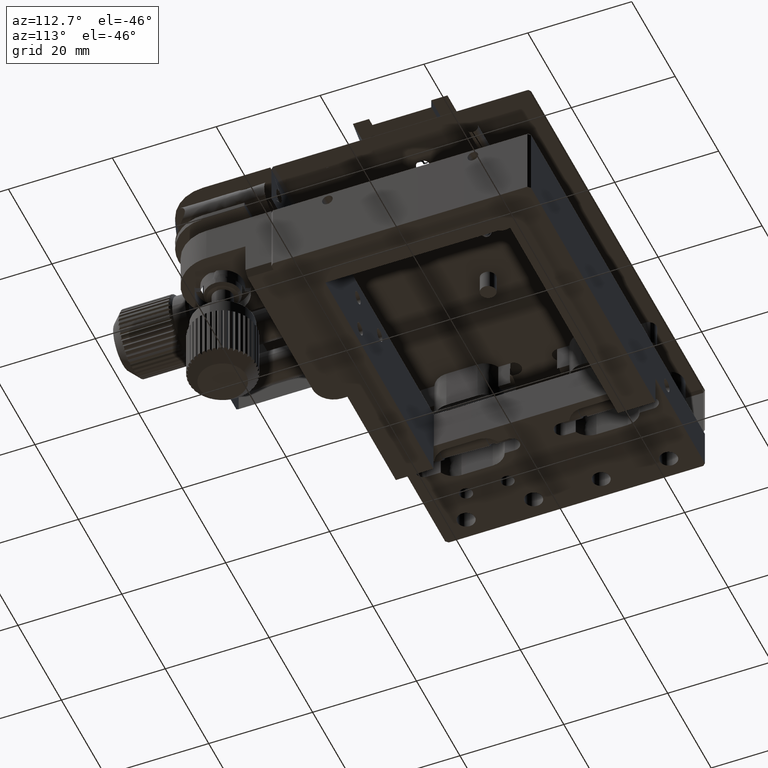
[diagram: clean part render]
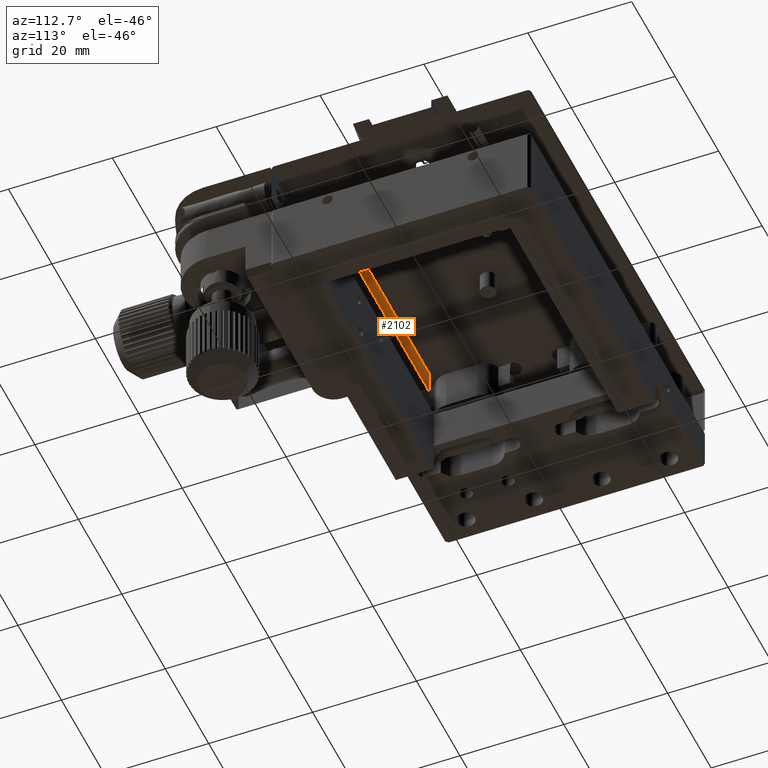
[diagram: same view with one face highlighted and labeled with its STEP entity id]
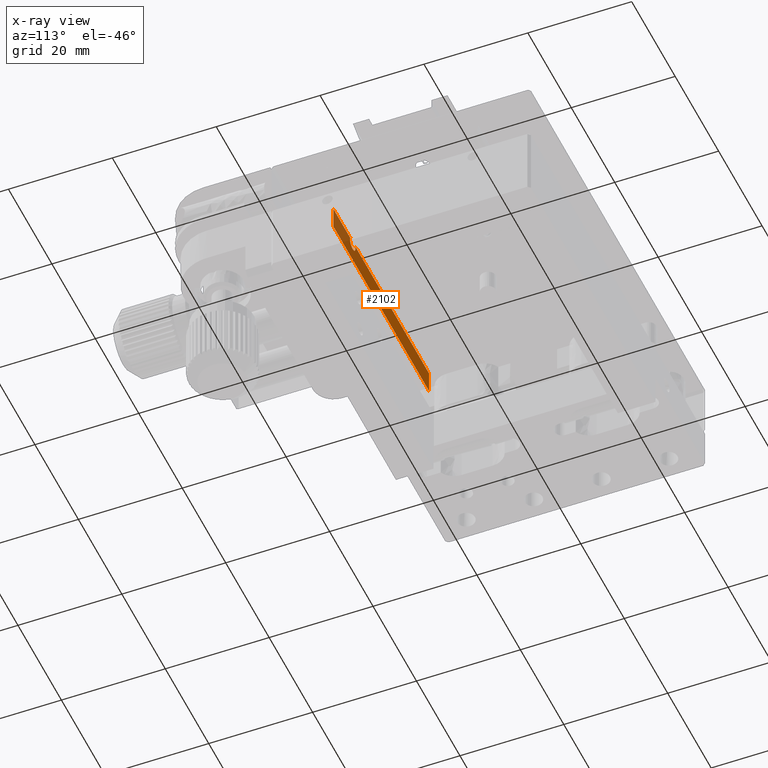
[diagram: x-ray of the same camera — body ghosted, the highlighted face saturated]
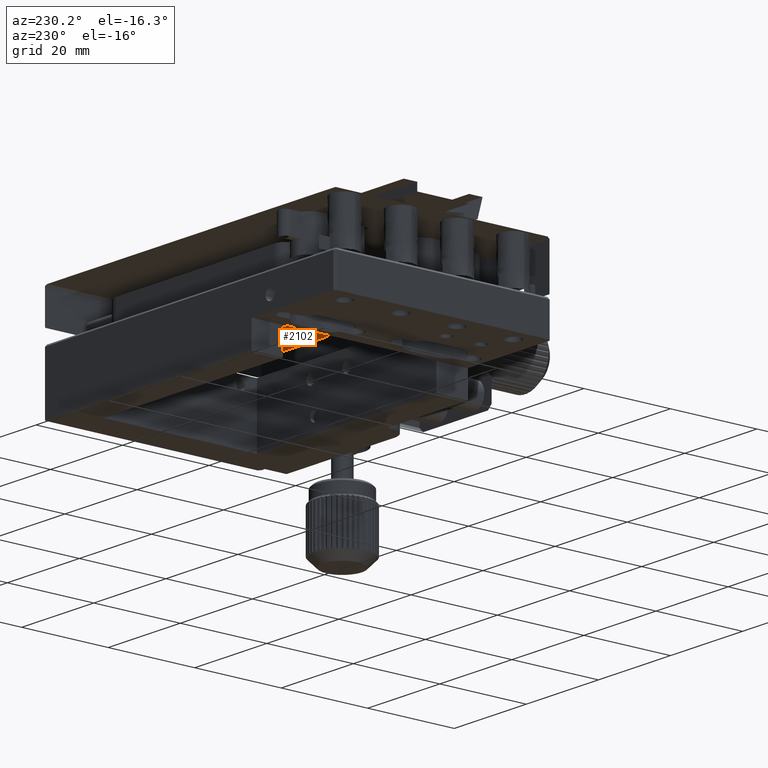
[diagram: same view with one face highlighted and labeled with its STEP entity id]
A machine part, auxiliary view. The second image highlights one B-rep face of the part: STEP entity #2102.
The next image is the same camera in x-ray: the body ghosted, the highlighted face saturated — about 31% of this face is hidden behind the body in this view.
A second angle (auxiliary view) of the same face is appended — the face is thin or edge-on in the first view.
In plain terms, the highlighted face is a freeform B-spline surface patch.
Its self-contained STEP definition (entity closure, byte-faithful):
#186 = CARTESIAN_POINT ( 'NONE',  ( 36.61636223166719617, -23.93494817087819726, 11.89873683576267993 ) ) ;
#301 = CARTESIAN_POINT ( 'NONE',  ( 28.16566042139339032, -23.93494817087820081, 11.80408788771677386 ) ) ;
#319 = EDGE_CURVE ( 'NONE', #7719, #6333, #36305, .T. ) ;
#373 = CARTESIAN_POINT ( 'NONE',  ( 36.61636223166719617, -23.93494817087819726, 10.10918381894540019 ) ) ;
#408 = B_SPLINE_CURVE_WITH_KNOTS ( 'NONE', 1,
 ( #17915, #3697 ),
 .UNSPECIFIED., .F., .F.,
 ( 2, 2 ),
 ( 0.000000000000000000, 1.000000000000000000 ),
 .UNSPECIFIED. ) ;
#556 = CARTESIAN_POINT ( 'NONE',  ( 36.65393836486491352, -23.93494817087817950, 10.77295620340501792 ) ) ;
#699 = EDGE_CURVE ( 'NONE', #1539, #18896, #14323, .T. ) ;
#730 = CARTESIAN_POINT ( 'NONE',  ( 36.61636223166718196, -23.93494817087819726, 10.17006635359847166 ) ) ;
#750 = ORIENTED_EDGE ( 'NONE', *, *, #22044, .T. ) ;
#1539 = VERTEX_POINT ( 'NONE', #12953 ) ;
#1716 = CARTESIAN_POINT ( 'NONE',  ( 27.75667729595610211, -23.93494817087819726, 11.75396032735409868 ) ) ;
#1906 = CARTESIAN_POINT ( 'NONE',  ( 26.59539065833181226, -23.93494817087820081, 12.49566225064801195 ) ) ;
#2102 = ADVANCED_FACE ( 'NONE', ( #28209 ), #20697, .T. ) ;
#2370 = CARTESIAN_POINT ( 'NONE',  ( -7.383637768332810047, -23.93494817087815107, 9.003960327354061377 ) ) ;
#2839 = ORIENTED_EDGE ( 'NONE', *, *, #699, .T. ) ;
#2879 = CARTESIAN_POINT ( 'NONE',  ( 27.75667729595610211, -23.93494817087819726, 11.75396032735409868 ) ) ;
#2948 = CARTESIAN_POINT ( 'NONE',  ( 36.64127699842266850, -23.93494817087820437, 11.40140868433141641 ) ) ;
#3126 = ORIENTED_EDGE ( 'NONE', *, *, #21259, .T. ) ;
#3242 = CARTESIAN_POINT ( 'NONE',  ( 29.01995350849290034, -23.93494817087819726, 13.10905382086097681 ) ) ;
#3492 = CARTESIAN_POINT ( 'NONE',  ( 36.63435626129569300, -23.93494817087820081, 10.51820448458388491 ) ) ;
#3697 = CARTESIAN_POINT ( 'NONE',  ( 36.61636223166719617, -23.93494817087819726, 11.89873683576267993 ) ) ;
#5715 = CARTESIAN_POINT ( 'NONE',  ( 36.62335819674528636, -23.93494817087819371, 11.62754105063808119 ) ) ;
#5891 = CARTESIAN_POINT ( 'NONE',  ( 36.64205549081145818, -23.93494817087820081, 10.61625282108803781 ) ) ;
#6075 = CARTESIAN_POINT ( 'NONE',  ( 36.63672425372681829, -23.93494817087819371, 10.54893682278139444 ) ) ;
#6254 = CARTESIAN_POINT ( 'NONE',  ( 36.65511781236789801, -23.93494817087819371, 11.21679914476090545 ) ) ;
#6333 = VERTEX_POINT ( 'NONE', #33701 ) ;
#7719 = VERTEX_POINT ( 'NONE', #14697 ) ;
#8208 = ORIENTED_EDGE ( 'NONE', *, *, #19026, .F. ) ;
#8500 = CARTESIAN_POINT ( 'NONE',  ( 36.65059931999743981, -23.93494817087819726, 11.28160676377069827 ) ) ;
#8621 = ORIENTED_EDGE ( 'NONE', *, *, #22418, .T. ) ;
#8755 = CARTESIAN_POINT ( 'NONE',  ( -7.383637768332810047, -23.93494817087815107, 13.50396032735409868 ) ) ;
#8837 = CARTESIAN_POINT ( 'NONE',  ( 36.92694569266389237, -23.93494817087819726, 9.003960327354061377 ) ) ;
#8853 = CARTESIAN_POINT ( 'NONE',  ( 36.63560452036393400, -23.93494817087818305, 10.53450099345280755 ) ) ;
#9030 = CARTESIAN_POINT ( 'NONE',  ( 36.63158689964703285, -23.93494817087819726, 10.48073941583537660 ) ) ;
#9144 = CARTESIAN_POINT ( 'NONE',  ( 28.68705483343581975, -23.93494817087820081, 12.14294277394042432 ) ) ;
#10207 = CARTESIAN_POINT ( 'NONE',  ( 26.97681687379283133, -23.93494817087819726, 12.00457486043612931 ) ) ;
#10813 = CARTESIAN_POINT ( 'NONE',  ( 36.61636223166719617, -23.93494817087819726, 9.003960327354061377 ) ) ;
#11276 = CARTESIAN_POINT ( 'NONE',  ( 36.61898152938416473, -23.93494817087819726, 10.27163232448870112 ) ) ;
#11356 = CARTESIAN_POINT ( 'NONE',  ( -7.383637768332810047, -23.93494817087815107, 9.003960327354061377 ) ) ;
#11452 = CARTESIAN_POINT ( 'NONE',  ( 36.65988502765834056, -23.93494817087820081, 10.86390737936686435 ) ) ;
#11629 = CARTESIAN_POINT ( 'NONE',  ( 36.63645033525168770, -23.93494817087819015, 10.54541867732849703 ) ) ;
#11812 = CARTESIAN_POINT ( 'NONE',  ( 36.65415135452893480, -23.93494817087820437, 10.77610769297145410 ) ) ;
#12428 = CARTESIAN_POINT ( 'NONE',  ( 26.61103337221720011, -23.93494817087819726, 13.50396032735409868 ) ) ;
#12953 = CARTESIAN_POINT ( 'NONE',  ( 28.90232121969510004, -23.93494817087819726, 13.50396032735409868 ) ) ;
#13771 = ORIENTED_EDGE ( 'NONE', *, *, #19744, .T. ) ;
#13918 = CARTESIAN_POINT ( 'NONE',  ( 36.61636223166719617, -23.93494817087819726, 13.50396032735409868 ) ) ;
#14153 = CARTESIAN_POINT ( 'NONE',  ( 28.98457337492520125, -23.93494817087819726, 12.68896063090539883 ) ) ;
#14207 = CARTESIAN_POINT ( 'NONE',  ( -7.383637768332810047, -23.93494817087819726, 13.50396032735409868 ) ) ;
#14225 = CARTESIAN_POINT ( 'NONE',  ( 36.65865080823027711, -23.93494817087820437, 11.15545730576890548 ) ) ;
#14323 = B_SPLINE_CURVE_WITH_KNOTS ( 'NONE', 3,
 ( #28875, #25385, #3242, #14153, #31622, #9144, #31272, #301, #34391, #2879 ),
 .UNSPECIFIED., .F., .F.,
 ( 4, 2, 2, 2, 4 ),
 ( 0.000000000000000000, 0.2500000000000000000, 0.5000000000000000000, 0.7500000000000000000, 1.000000000000000000 ),
 .UNSPECIFIED. ) ;
#14400 = CARTESIAN_POINT ( 'NONE',  ( -7.383637768332810047, -23.93494817087819726, 9.003960327354061377 ) ) ;
#14697 = CARTESIAN_POINT ( 'NONE',  ( 36.61636223166719617, -23.93494817087819726, 10.10918381894540019 ) ) ;
#14772 = CARTESIAN_POINT ( 'NONE',  ( 36.63851598828232170, -23.93494817087819726, 11.43636748896705235 ) ) ;
#15931 = CARTESIAN_POINT ( 'NONE',  ( 27.54587149217743303, -23.93494817087819371, 11.75396032735409690 ) ) ;
#16247 = CARTESIAN_POINT ( 'NONE',  ( -7.383637768332810047, -23.93494817087815107, 13.50396032735409868 ) ) ;
#16627 = CARTESIAN_POINT ( 'NONE',  ( 27.75667729595610211, -23.93494817087819726, 11.75396032735409868 ) ) ;
#17168 = VERTEX_POINT ( 'NONE', #16247 ) ;
#17346 = CARTESIAN_POINT ( 'NONE',  ( 36.65190478241918726, -23.93494817087820792, 10.74441504970640082 ) ) ;
#17523 = CARTESIAN_POINT ( 'NONE',  ( 36.65450507432623795, -23.93494817087819726, 11.22639405182488304 ) ) ;
#17706 = CARTESIAN_POINT ( 'NONE',  ( 36.65428596457981314, -23.93494817087819726, 10.77812051286290362 ) ) ;
#17915 = CARTESIAN_POINT ( 'NONE',  ( 36.61636223166719617, -23.93494817087819726, 13.50396032735409868 ) ) ;
#18896 = VERTEX_POINT ( 'NONE', #16627 ) ;
#19026 = EDGE_CURVE ( 'NONE', #28672, #6333, #408, .T. ) ;
#19614 = CARTESIAN_POINT ( 'NONE',  ( 26.61103337221720011, -23.93494817087819726, 13.50396032735409868 ) ) ;
#19675 = VERTEX_POINT ( 'NONE', #12428 ) ;
#19744 = EDGE_CURVE ( 'NONE', #18896, #19675, #21046, .T. ) ;
#20102 = CARTESIAN_POINT ( 'NONE',  ( 36.92694569266389237, -23.93494817087819726, 13.50396032735409868 ) ) ;
#20115 = CARTESIAN_POINT ( 'NONE',  ( 36.62662114772527389, -23.93494817087819726, 10.40804975278755329 ) ) ;
#20248 = CARTESIAN_POINT ( 'NONE',  ( 36.61636223166719617, -23.93494817087819726, 13.50396032735409868 ) ) ;
#20590 = ORIENTED_EDGE ( 'NONE', *, *, #25761, .F. ) ;
#20697 = B_SPLINE_SURFACE_WITH_KNOTS ( 'NONE', 1, 1, ( 
 ( #20102, #8837 ),
 ( #14207, #14400 ) ),
 .UNSPECIFIED., .F., .F., .F.,
 ( 2, 2 ),
 ( 2, 2 ),
 ( 0.000000000000000000, 1.000000000000000000 ),
 ( 0.000000000000000000, 1.000000000000000000 ),
 .UNSPECIFIED. ) ;
#21046 = B_SPLINE_CURVE_WITH_KNOTS ( 'NONE', 3,
 ( #1716, #15931, #32318, #10207, #27171, #1906, #27905, #36365, #25318, #19614 ),
 .UNSPECIFIED., .F., .F.,
 ( 4, 2, 2, 2, 4 ),
 ( 0.000000000000000000, 0.2500000000000000000, 0.5000000000000000000, 0.7500000000000000000, 1.000000000000000000 ),
 .UNSPECIFIED. ) ;
#21259 = EDGE_CURVE ( 'NONE', #19675, #17168, #27545, .T. ) ;
#22044 = EDGE_CURVE ( 'NONE', #28672, #1539, #31889, .T. ) ;
#22418 = EDGE_CURVE ( 'NONE', #23082, #30145, #35363, .T. ) ;
#22498 = CARTESIAN_POINT ( 'NONE',  ( 36.65478498629048687, -23.93494817087819726, 11.22205152993592847 ) ) ;
#22862 = CARTESIAN_POINT ( 'NONE',  ( 36.64774625969788957, -23.93494817087819371, 10.68907824015199814 ) ) ;
#23045 = CARTESIAN_POINT ( 'NONE',  ( 36.66263441300553438, -23.93494817087820081, 10.93916046500802075 ) ) ;
#23082 = VERTEX_POINT ( 'NONE', #2370 ) ;
#23221 = CARTESIAN_POINT ( 'NONE',  ( 36.66164999370538169, -23.93494817087819726, 11.08800027819977352 ) ) ;
#25318 = CARTESIAN_POINT ( 'NONE',  ( 26.52669686399260129, -23.93494817087819726, 13.31072111096048438 ) ) ;
#25385 = CARTESIAN_POINT ( 'NONE',  ( 28.98664354121833497, -23.93494817087819371, 13.31075361677678082 ) ) ;
#25455 = CARTESIAN_POINT ( 'NONE',  ( 36.65346806790852696, -23.93494817087820437, 11.24236480335187238 ) ) ;
#25761 = EDGE_CURVE ( 'NONE', #7719, #30145, #28664, .T. ) ;
#25987 = CARTESIAN_POINT ( 'NONE',  ( 36.63778737471885449, -23.93494817087819726, 11.44556705429324950 ) ) ;
#26066 = CARTESIAN_POINT ( 'NONE',  ( 26.61103337221720011, -23.93494817087819726, 13.50396032735409868 ) ) ;
#26166 = CARTESIAN_POINT ( 'NONE',  ( 36.65669838469029429, -23.93494817087819015, 11.19084300997560000 ) ) ;
#26423 = ORIENTED_EDGE ( 'NONE', *, *, #319, .T. ) ;
#26739 = B_SPLINE_CURVE_WITH_KNOTS ( 'NONE', 1,
 ( #36158, #32643 ),
 .UNSPECIFIED., .F., .F.,
 ( 2, 2 ),
 ( 0.000000000000000000, 1.000000000000000000 ),
 .UNSPECIFIED. ) ;
#27006 = CARTESIAN_POINT ( 'NONE',  ( 36.61636223166719617, -23.93494817087819726, 9.003960327354061377 ) ) ;
#27171 = CARTESIAN_POINT ( 'NONE',  ( 26.82631386724519373, -23.93494817087819726, 12.14295201029729121 ) ) ;
#27545 = B_SPLINE_CURVE_WITH_KNOTS ( 'NONE', 1,
 ( #26066, #8755 ),
 .UNSPECIFIED., .F., .F.,
 ( 2, 2 ),
 ( 0.000000000000000000, 1.000000000000000000 ),
 .UNSPECIFIED. ) ;
#27905 = CARTESIAN_POINT ( 'NONE',  ( 26.52879951041839135, -23.93494817087819726, 12.68894437462958535 ) ) ;
#27929 = EDGE_CURVE ( 'NONE', #17168, #23082, #26739, .T. ) ;
#28209 = FACE_OUTER_BOUND ( 'NONE', #33647, .T. ) ;
#28225 = CARTESIAN_POINT ( 'NONE',  ( 36.61636223166718196, -23.93494817087819015, 11.77675952328602627 ) ) ;
#28664 = B_SPLINE_CURVE_WITH_KNOTS ( 'NONE', 1,
 ( #30404, #32793 ),
 .UNSPECIFIED., .F., .F.,
 ( 2, 2 ),
 ( 0.000000000000000000, 1.000000000000000000 ),
 .UNSPECIFIED. ) ;
#28672 = VERTEX_POINT ( 'NONE', #13918 ) ;
#28767 = CARTESIAN_POINT ( 'NONE',  ( 36.63963795157408754, -23.93494817087819371, 11.42217527939921240 ) ) ;
#28875 = CARTESIAN_POINT ( 'NONE',  ( 28.90232121969510004, -23.93494817087819726, 13.50396032735409868 ) ) ;
#28943 = CARTESIAN_POINT ( 'NONE',  ( 36.65423838980501614, -23.93494817087820081, 10.77737900095191925 ) ) ;
#30145 = VERTEX_POINT ( 'NONE', #27006 ) ;
#30404 = CARTESIAN_POINT ( 'NONE',  ( 36.61636223166719617, -23.93494817087819726, 10.10918381894540019 ) ) ;
#30743 = CARTESIAN_POINT ( 'NONE',  ( 28.90232121969510004, -23.93494817087819726, 13.50396032735409868 ) ) ;
#30970 = CARTESIAN_POINT ( 'NONE',  ( 36.64479415444572652, -23.93494817087819726, 11.35660533082757873 ) ) ;
#31272 = CARTESIAN_POINT ( 'NONE',  ( 28.53654529988547495, -23.93494817087819726, 12.00459812916762736 ) ) ;
#31511 = CARTESIAN_POINT ( 'NONE',  ( 36.65560896521972722, -23.93494817087820792, 11.20895015968448938 ) ) ;
#31622 = CARTESIAN_POINT ( 'NONE',  ( 28.91794982481161469, -23.93494817087819726, 12.49567148700480779 ) ) ;
#31688 = CARTESIAN_POINT ( 'NONE',  ( 36.65336386686826131, -23.93494817087819726, 10.76467690964521218 ) ) ;
#31889 = B_SPLINE_CURVE_WITH_KNOTS ( 'NONE', 1,
 ( #20248, #30743 ),
 .UNSPECIFIED., .F., .F.,
 ( 2, 2 ),
 ( 0.000000000000000000, 1.000000000000000000 ),
 .UNSPECIFIED. ) ;
#32318 = CARTESIAN_POINT ( 'NONE',  ( 27.34768658875270830, -23.93494817087819726, 11.80411115644835363 ) ) ;
#32643 = CARTESIAN_POINT ( 'NONE',  ( -7.383637768332810047, -23.93494817087815107, 9.003960327354061377 ) ) ;
#32793 = CARTESIAN_POINT ( 'NONE',  ( 36.61636223166719617, -23.93494817087819726, 9.003960327354061377 ) ) ;
#33647 = EDGE_LOOP ( 'NONE', ( #20590, #26423, #8208, #750, #2839, #13771, #3126, #36500, #8621 ) ) ;
#33701 = CARTESIAN_POINT ( 'NONE',  ( 36.61636223166719617, -23.93494817087819726, 11.89873683576267993 ) ) ;
#34280 = CARTESIAN_POINT ( 'NONE',  ( 36.66266816136148776, -23.93494817087820081, 11.03586176458783896 ) ) ;
#34391 = CARTESIAN_POINT ( 'NONE',  ( 27.96751856649894918, -23.93494817087819726, 11.75396032735406493 ) ) ;
#35363 = B_SPLINE_CURVE_WITH_KNOTS ( 'NONE', 1,
 ( #11356, #10813 ),
 .UNSPECIFIED., .F., .F.,
 ( 2, 2 ),
 ( 0.000000000000000000, 1.000000000000000000 ),
 .UNSPECIFIED. ) ;
#36158 = CARTESIAN_POINT ( 'NONE',  ( -7.383637768332810047, -23.93494817087815107, 13.50396032735409868 ) ) ;
#36305 = B_SPLINE_CURVE_WITH_KNOTS ( 'NONE', 3,
 ( #373, #730, #11276, #20115, #9030, #3492, #8853, #11629, #6075, #5891, #22862, #17346, #31688, #556, #11812, #17706, #28943, #11452, #23045, #34280, #23221, #14225, #26166, #31511, #6254, #22498, #17523, #25455, #8500, #30970, #2948, #28767, #14772, #25987, #5715, #28225, #186 ),
 .UNSPECIFIED., .F., .F.,
 ( 4, 1, 1, 1, 1, 2, 2, 1, 1, 1, 1, 2, 2, 2, 1, 1, 1, 1, 2, 2, 1, 1, 1, 2, 2, 4 ),
 ( 0.000000000000000000, 0.1249999999999965583, 0.1874999999999962808, 0.2187499999999958089, 0.2343749999999955591, 0.2421874999999945877, 0.2499999999999936162, 0.3124999999999885647, 0.3437499999999860667, 0.3593749999999854006, 0.3671874999999884537, 0.3710937499999860667, 0.3749999999999836797, 0.4999999999999116262, 0.5624999999998756550, 0.5937499999998574474, 0.6093749999998500089, 0.6171874999998465672, 0.6210937499998461231, 0.6249999999998456790, 0.6874999999998677724, 0.7187499999998773204, 0.7343749999998817612, 0.7421874999998843148, 0.7499999999998868683, 1.000000000000000000 ),
 .UNSPECIFIED. ) ;
#36365 = CARTESIAN_POINT ( 'NONE',  ( 26.49338278998795104, -23.93494817087820081, 13.10907007713685779 ) ) ;
#36500 = ORIENTED_EDGE ( 'NONE', *, *, #27929, .T. ) ;